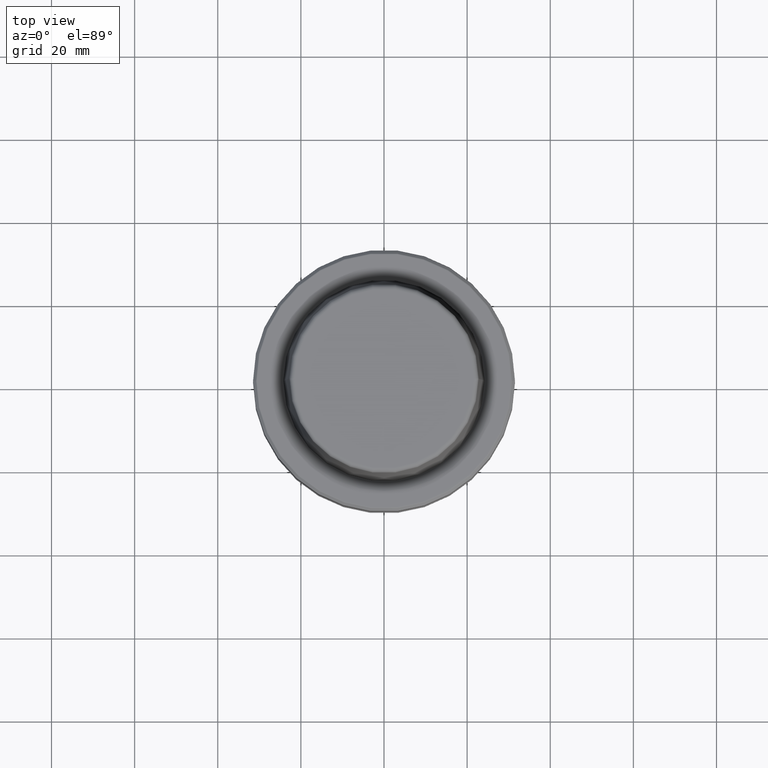
[diagram: clean part render]
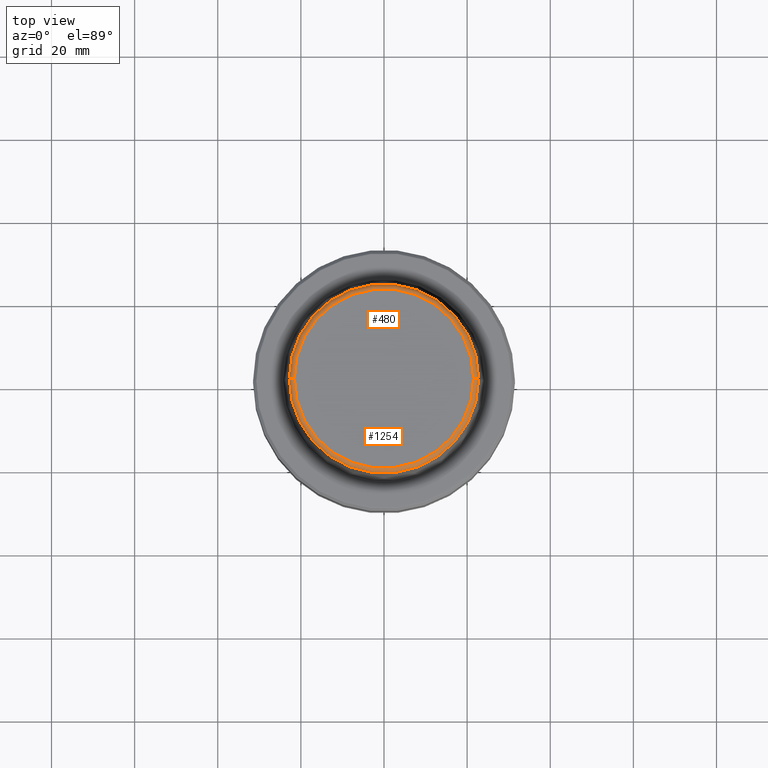
[diagram: same view with one multi-face feature highlighted, each face labeled with its STEP entity id]
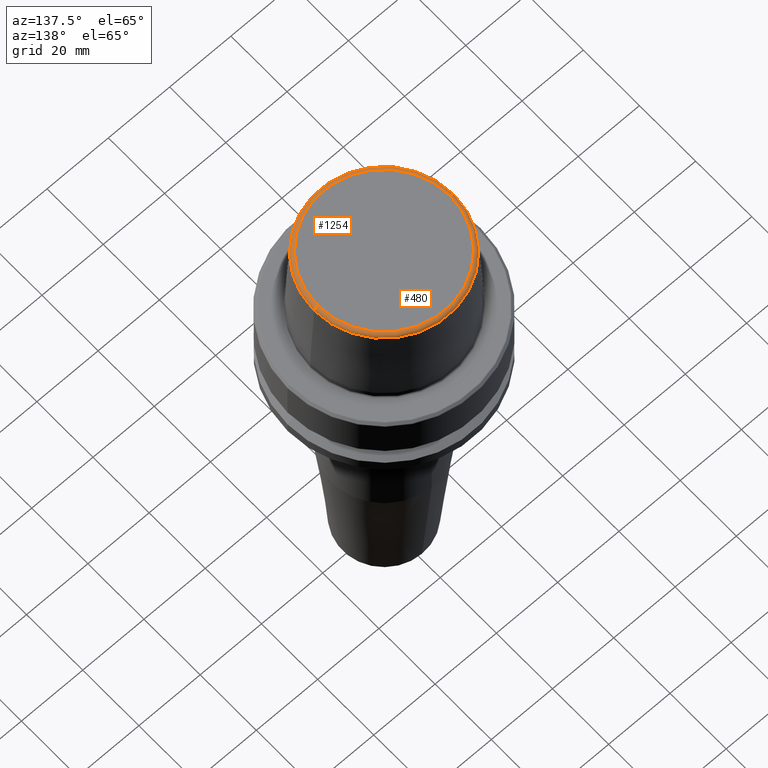
[diagram: same view with one multi-face feature highlighted, each face labeled with its STEP entity id]
A machine part, top view. The highlighted faces form ONE feature: a constant-radius fillet chain: 2 tangent blend faces with common blend radius 1.2 mm. The faces share edges in the B-rep.
A second angle (auxiliary view) of the same feature is appended — it is thin or edge-on in the first view.
Their STEP definitions:
[1] entity #480 (Torus):
#13 = DIRECTION ( 'NONE',  ( 0.0000000000000000000, -1.000000000000000000, 0.0000000000000000000 ) ) ;
#14 = DIRECTION ( 'NONE',  ( -0.0000000000000000000, -0.0000000000000000000, 1.000000000000000000 ) ) ;
#19 = ORIENTED_EDGE ( 'NONE', *, *, #642, .F. ) ;
#35 = DIRECTION ( 'NONE',  ( 1.000000000000000000, 0.0000000000000000000, 0.0000000000000000000 ) ) ;
#45 = AXIS2_PLACEMENT_3D ( 'NONE', #714, #130, #799 ) ;
#46 = DIRECTION ( 'NONE',  ( -1.000000000000000000, 1.224646799147353200E-016, 0.0000000000000000000 ) ) ;
#105 = CARTESIAN_POINT ( 'NONE',  ( 22.77957961851797100, 2.876386432489616700E-015, 30.76004333261571900 ) ) ;
#107 = AXIS2_PLACEMENT_3D ( 'NONE', #1197, #624, #35 ) ;
#121 = ORIENTED_EDGE ( 'NONE', *, *, #1023, .F. ) ;
#130 = DIRECTION ( 'NONE',  ( -0.0000000000000000000, -0.0000000000000000000, 1.000000000000000000 ) ) ;
#215 = ORIENTED_EDGE ( 'NONE', *, *, #783, .T. ) ;
#248 = AXIS2_PLACEMENT_3D ( 'NONE', #1175, #14, #694 ) ;
#284 = CIRCLE ( 'NONE', #1081, 1.200000000000003100 ) ;
#307 = VERTEX_POINT ( 'NONE', #723 ) ;
#327 = CARTESIAN_POINT ( 'NONE',  ( -21.58108272732117100, 2.716307157494421400E-015, 31.89999999999999900 ) ) ;
#387 = TOROIDAL_SURFACE ( 'NONE', #248, 21.58108272732117100, 1.200000000000003100 ) ;
#480 = ADVANCED_FACE ( 'NONE', ( #1133 ), #387, .T. ) ;
#598 = CARTESIAN_POINT ( 'NONE',  ( 21.58108272732117100, 0.0000000000000000000, 30.69999999999999200 ) ) ;
#612 = EDGE_CURVE ( 'NONE', #1005, #1132, #1039, .T. ) ;
#624 = DIRECTION ( 'NONE',  ( -0.0000000000000000000, -0.0000000000000000000, 1.000000000000000000 ) ) ;
#631 = DIRECTION ( 'NONE',  ( 1.224646799147353200E-016, 1.000000000000000000, 0.0000000000000000000 ) ) ;
#636 = CARTESIAN_POINT ( 'NONE',  ( -22.77957961851797100, 0.0000000000000000000, 30.76004333261571900 ) ) ;
#642 = EDGE_CURVE ( 'NONE', #307, #1070, #776, .T. ) ;
#692 = DIRECTION ( 'NONE',  ( 0.0000000000000000000, 0.0000000000000000000, -1.000000000000000000 ) ) ;
#694 = DIRECTION ( 'NONE',  ( 1.000000000000000000, 0.0000000000000000000, 0.0000000000000000000 ) ) ;
#714 = CARTESIAN_POINT ( 'NONE',  ( 0.0000000000000000000, 0.0000000000000000000, 30.76004333261571900 ) ) ;
#723 = CARTESIAN_POINT ( 'NONE',  ( 21.58108272732117100, 0.0000000000000000000, 31.89999999999999900 ) ) ;
#752 = EDGE_LOOP ( 'NONE', ( #1172, #215, #19, #121 ) ) ;
#776 = CIRCLE ( 'NONE', #107, 21.58108272732117100 ) ;
#783 = EDGE_CURVE ( 'NONE', #1132, #1070, #284, .T. ) ;
#799 = DIRECTION ( 'NONE',  ( 1.000000000000000000, 0.0000000000000000000, 0.0000000000000000000 ) ) ;
#1005 = VERTEX_POINT ( 'NONE', #105 ) ;
#1023 = EDGE_CURVE ( 'NONE', #1005, #307, #1085, .T. ) ;
#1039 = CIRCLE ( 'NONE', #45, 22.77957961851797100 ) ;
#1070 = VERTEX_POINT ( 'NONE', #327 ) ;
#1081 = AXIS2_PLACEMENT_3D ( 'NONE', #1208, #631, #46 ) ;
#1085 = CIRCLE ( 'NONE', #1128, 1.200000000000003100 ) ;
#1128 = AXIS2_PLACEMENT_3D ( 'NONE', #598, #13, #692 ) ;
#1132 = VERTEX_POINT ( 'NONE', #636 ) ;
#1133 = FACE_OUTER_BOUND ( 'NONE', #752, .T. ) ;
#1172 = ORIENTED_EDGE ( 'NONE', *, *, #612, .T. ) ;
#1175 = CARTESIAN_POINT ( 'NONE',  ( 0.0000000000000000000, 0.0000000000000000000, 30.69999999999999200 ) ) ;
#1197 = CARTESIAN_POINT ( 'NONE',  ( 0.0000000000000000000, 0.0000000000000000000, 31.89999999999999900 ) ) ;
#1208 = CARTESIAN_POINT ( 'NONE',  ( -21.58108272732117100, 2.642920388414810300E-015, 30.69999999999999200 ) ) ;
[2] entity #1254 (Torus):
#13 = DIRECTION ( 'NONE',  ( 0.0000000000000000000, -1.000000000000000000, 0.0000000000000000000 ) ) ;
#46 = DIRECTION ( 'NONE',  ( -1.000000000000000000, 1.224646799147353200E-016, 0.0000000000000000000 ) ) ;
#105 = CARTESIAN_POINT ( 'NONE',  ( 22.77957961851797100, 2.876386432489616700E-015, 30.76004333261571900 ) ) ;
#117 = ORIENTED_EDGE ( 'NONE', *, *, #174, .T. ) ;
#174 = EDGE_CURVE ( 'NONE', #1132, #1005, #637, .T. ) ;
#193 = CARTESIAN_POINT ( 'NONE',  ( 0.0000000000000000000, 0.0000000000000000000, 31.89999999999999900 ) ) ;
#245 = EDGE_LOOP ( 'NONE', ( #828, #117, #855, #1124 ) ) ;
#284 = CIRCLE ( 'NONE', #1081, 1.200000000000003100 ) ;
#291 = DIRECTION ( 'NONE',  ( 1.000000000000000000, 0.0000000000000000000, 0.0000000000000000000 ) ) ;
#307 = VERTEX_POINT ( 'NONE', #723 ) ;
#321 = DIRECTION ( 'NONE',  ( -0.0000000000000000000, -0.0000000000000000000, 1.000000000000000000 ) ) ;
#327 = CARTESIAN_POINT ( 'NONE',  ( -21.58108272732117100, 2.716307157494421400E-015, 31.89999999999999900 ) ) ;
#412 = FACE_OUTER_BOUND ( 'NONE', #245, .T. ) ;
#534 = CARTESIAN_POINT ( 'NONE',  ( 0.0000000000000000000, 0.0000000000000000000, 30.76004333261571900 ) ) ;
#598 = CARTESIAN_POINT ( 'NONE',  ( 21.58108272732117100, 0.0000000000000000000, 30.69999999999999200 ) ) ;
#631 = DIRECTION ( 'NONE',  ( 1.224646799147353200E-016, 1.000000000000000000, 0.0000000000000000000 ) ) ;
#636 = CARTESIAN_POINT ( 'NONE',  ( -22.77957961851797100, 0.0000000000000000000, 30.76004333261571900 ) ) ;
#637 = CIRCLE ( 'NONE', #1030, 22.77957961851797100 ) ;
#692 = DIRECTION ( 'NONE',  ( 0.0000000000000000000, 0.0000000000000000000, -1.000000000000000000 ) ) ;
#723 = CARTESIAN_POINT ( 'NONE',  ( 21.58108272732117100, 0.0000000000000000000, 31.89999999999999900 ) ) ;
#783 = EDGE_CURVE ( 'NONE', #1132, #1070, #284, .T. ) ;
#800 = CARTESIAN_POINT ( 'NONE',  ( 0.0000000000000000000, 0.0000000000000000000, 30.69999999999999200 ) ) ;
#827 = CIRCLE ( 'NONE', #1062, 21.58108272732117100 ) ;
#828 = ORIENTED_EDGE ( 'NONE', *, *, #783, .F. ) ;
#855 = ORIENTED_EDGE ( 'NONE', *, *, #1023, .T. ) ;
#878 = DIRECTION ( 'NONE',  ( -0.0000000000000000000, -0.0000000000000000000, 1.000000000000000000 ) ) ;
#980 = EDGE_CURVE ( 'NONE', #1070, #307, #827, .T. ) ;
#989 = TOROIDAL_SURFACE ( 'NONE', #1168, 21.58108272732117100, 1.200000000000003100 ) ;
#998 = DIRECTION ( 'NONE',  ( 1.000000000000000000, 0.0000000000000000000, 0.0000000000000000000 ) ) ;
#1005 = VERTEX_POINT ( 'NONE', #105 ) ;
#1023 = EDGE_CURVE ( 'NONE', #1005, #307, #1085, .T. ) ;
#1030 = AXIS2_PLACEMENT_3D ( 'NONE', #534, #1216, #1137 ) ;
#1062 = AXIS2_PLACEMENT_3D ( 'NONE', #193, #878, #291 ) ;
#1070 = VERTEX_POINT ( 'NONE', #327 ) ;
#1081 = AXIS2_PLACEMENT_3D ( 'NONE', #1208, #631, #46 ) ;
#1085 = CIRCLE ( 'NONE', #1128, 1.200000000000003100 ) ;
#1124 = ORIENTED_EDGE ( 'NONE', *, *, #980, .F. ) ;
#1128 = AXIS2_PLACEMENT_3D ( 'NONE', #598, #13, #692 ) ;
#1132 = VERTEX_POINT ( 'NONE', #636 ) ;
#1137 = DIRECTION ( 'NONE',  ( 1.000000000000000000, 0.0000000000000000000, 0.0000000000000000000 ) ) ;
#1168 = AXIS2_PLACEMENT_3D ( 'NONE', #800, #321, #998 ) ;
#1208 = CARTESIAN_POINT ( 'NONE',  ( -21.58108272732117100, 2.642920388414810300E-015, 30.69999999999999200 ) ) ;
#1216 = DIRECTION ( 'NONE',  ( -0.0000000000000000000, -0.0000000000000000000, 1.000000000000000000 ) ) ;
#1254 = ADVANCED_FACE ( 'NONE', ( #412 ), #989, .T. ) ;